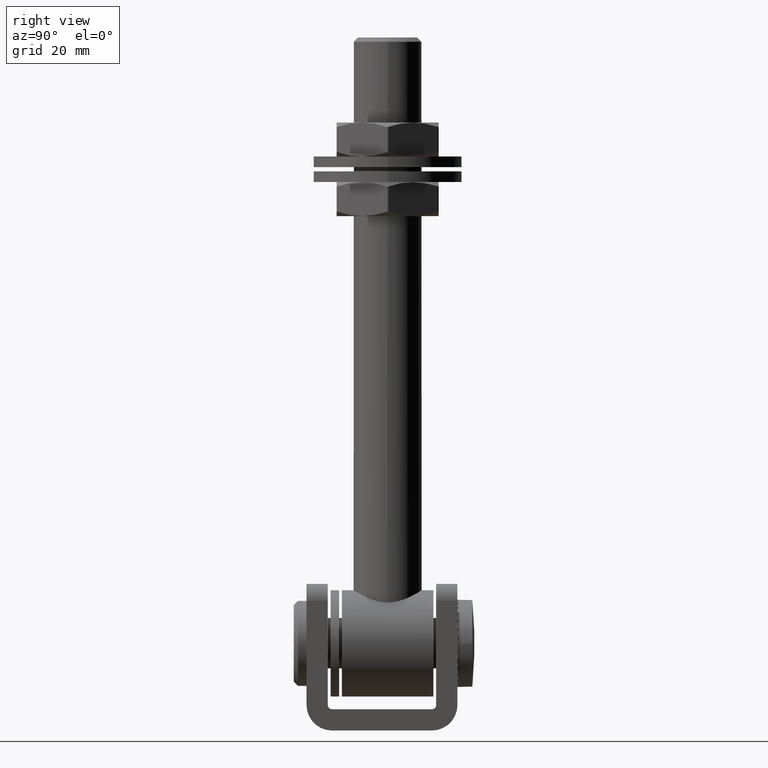
[diagram: clean part render]
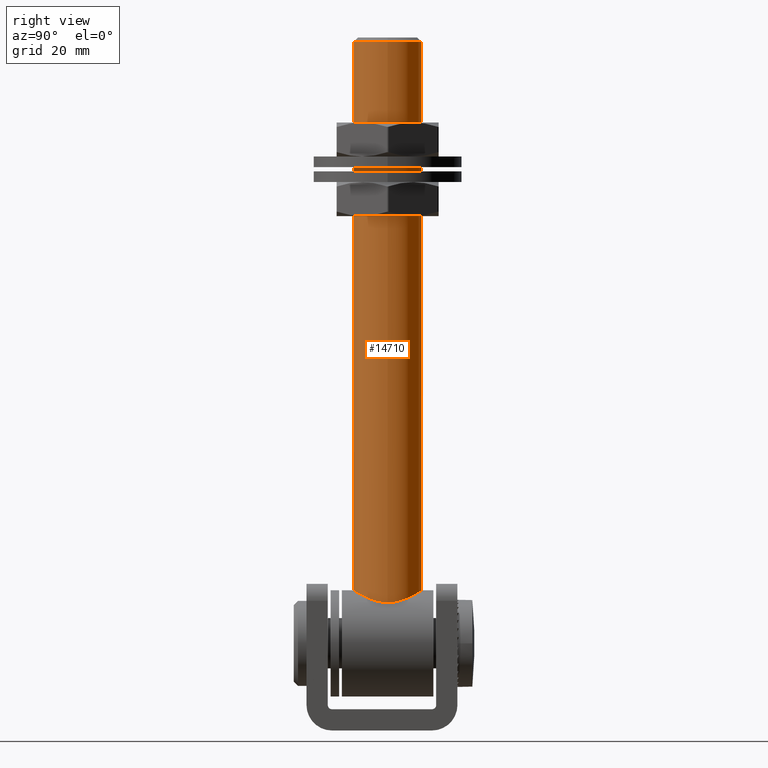
[diagram: same view with one face highlighted and labeled with its STEP entity id]
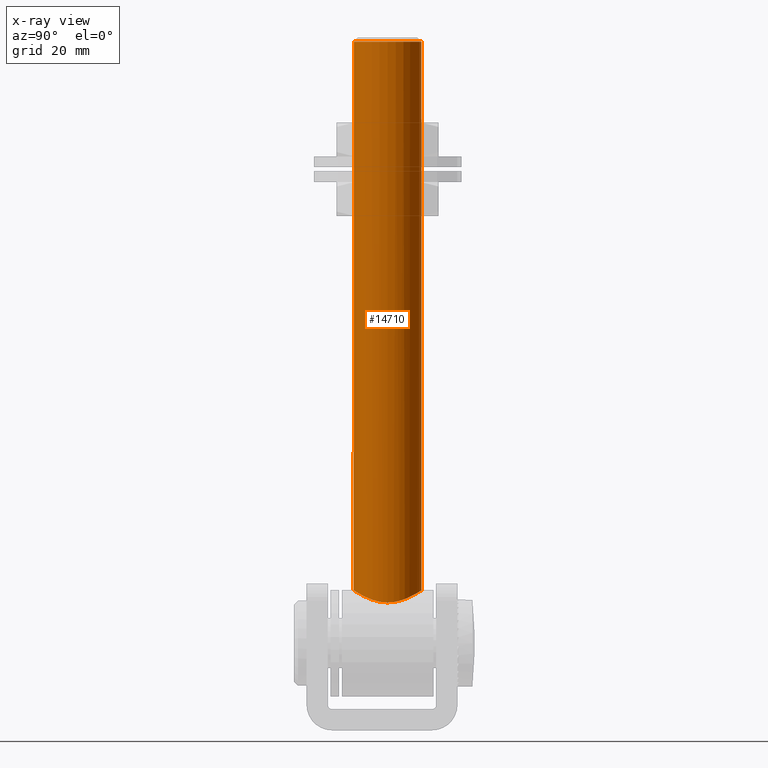
[diagram: x-ray of the same camera — body ghosted, the highlighted face saturated]
A machine part, right view. The second image highlights one B-rep face of the part: STEP entity #14710.
The next image is the same camera in x-ray: the body ghosted, the highlighted face saturated — about 0% of this face is hidden behind the body in this view.
In plain terms, the highlighted cylindrical surface (bore or boss wall) has radius 8 mm, axis along (0, 0, 1).
Its self-contained STEP definition (entity closure, byte-faithful):
#349 = CARTESIAN_POINT ( 'NONE',  ( 7.999999999999998224, -0.5454683496510984719, 22.10468635614929767 ) ) ;
#355 = AXIS2_PLACEMENT_3D ( 'NONE', #7534, #7317, #15854 ) ;
#435 = CARTESIAN_POINT ( 'NONE',  ( 7.726767025061614724, -2.141723424343242588, 22.32682643505994946 ) ) ;
#624 = CARTESIAN_POINT ( 'NONE',  ( -2.850959130328162949, 7.479375526213288161, 24.67310839935930034 ) ) ;
#696 = CARTESIAN_POINT ( 'NONE',  ( -5.997958754650827728, 5.299954014183470008, 23.46856614369925254 ) ) ;
#783 = CARTESIAN_POINT ( 'NONE',  ( 6.927106962908643695, 4.034537184033605506, 22.91051240348730289 ) ) ;
#1101 = CARTESIAN_POINT ( 'NONE',  ( 8.000000000000000000, 0.000000000000000000, 154.0000000000000284 ) ) ;
#1145 = CARTESIAN_POINT ( 'NONE',  ( -7.557621313358712456, 2.673864851608510396, 22.45970261290592518 ) ) ;
#1725 = CARTESIAN_POINT ( 'NONE',  ( 4.042478787381219796, -6.908446655177310269, 24.33074556269136224 ) ) ;
#2379 = VERTEX_POINT ( 'NONE', #1101 ) ;
#2443 = CARTESIAN_POINT ( 'NONE',  ( 7.999999999999998224, 0.5454683496511104623, 22.10468635614928345 ) ) ;
#2725 = CARTESIAN_POINT ( 'NONE',  ( -7.184069897211315947, -3.558054997097419569, 22.73233445889194471 ) ) ;
#2812 = CARTESIAN_POINT ( 'NONE',  ( -6.477316523627482781, 4.702033813157902919, 23.19218112865063475 ) ) ;
#2898 = CARTESIAN_POINT ( 'NONE',  ( -8.002535385573718685, -0.5042735986296233985, 22.10257460843511979 ) ) ;
#2961 = FACE_OUTER_BOUND ( 'NONE', #5622, .T. ) ;
#3037 = CARTESIAN_POINT ( 'NONE',  ( -2.162078596445624612, -7.720895130739021894, 24.82294607310170775 ) ) ;
#3796 = CARTESIAN_POINT ( 'NONE',  ( 6.022115724631410316, -5.291028751336778413, 23.46120233513477160 ) ) ;
#3995 = CARTESIAN_POINT ( 'NONE',  ( 5.322005861619240719, 5.994390575232530161, 23.81753430498451252 ) ) ;
#4077 = CARTESIAN_POINT ( 'NONE',  ( 7.944861982727176475, 1.077216154405964188, 22.15130229499927239 ) ) ;
#4143 = CARTESIAN_POINT ( 'NONE',  ( 2.667693104955243921, 7.560163069758923271, 24.72208889438390500 ) ) ;
#4365 = CARTESIAN_POINT ( 'NONE',  ( -7.573141455986650783, -2.591775148635318438, 22.44520317511529939 ) ) ;
#4523 = CARTESIAN_POINT ( 'NONE',  ( -6.937051407935236114, -4.017135753717870017, 22.90380517774536173 ) ) ;
#4600 = CARTESIAN_POINT ( 'NONE',  ( -7.925958969532766574, 1.118737722377457722, 22.16594805705182836 ) ) ;
#4675 = CARTESIAN_POINT ( 'NONE',  ( -7.950427690527955171, -1.037997620068277449, 22.14669702465948831 ) ) ;
#4881 = CARTESIAN_POINT ( 'NONE',  ( -0.2974571727273283561, -7.998995236841873968, 24.99935695390728085 ) ) ;
#5137 = EDGE_CURVE ( 'NONE', #20525, #20525, #18126, .T. ) ;
#5537 = CARTESIAN_POINT ( 'NONE',  ( 7.163689336258907581, -3.598812311873129666, 22.74668071112485279 ) ) ;
#5622 = EDGE_LOOP ( 'NONE', ( #19383 ) ) ;
#5808 = CARTESIAN_POINT ( 'NONE',  ( -0.5062884801357961928, 7.988503933067514495, 24.99262952341520716 ) ) ;
#5877 = CARTESIAN_POINT ( 'NONE',  ( -2.600330002857885070, 7.570318484142209314, 24.72930768733408158 ) ) ;
#5958 = CARTESIAN_POINT ( 'NONE',  ( 7.171814772937419313, 3.582397195696791492, 22.74095172744605620 ) ) ;
#6261 = CARTESIAN_POINT ( 'NONE',  ( -6.050648417971467907, -5.258483077015710272, 23.44545132170996737 ) ) ;
#6310 = CARTESIAN_POINT ( 'NONE',  ( 2.108765420479957076, -7.735946326957306773, 24.83239814943447854 ) ) ;
#6332 = CARTESIAN_POINT ( 'NONE',  ( -7.983217010569967798, 0.5836487302595602111, 22.11871215862535678 ) ) ;
#6423 = AXIS2_PLACEMENT_3D ( 'NONE', #11979, #8550, #22113 ) ;
#6490 = CARTESIAN_POINT ( 'NONE',  ( -4.938972675670426860, -6.314095043563813903, 23.99178990770705155 ) ) ;
#6604 = CARTESIAN_POINT ( 'NONE',  ( 0.5092763689232374658, -7.988315172126279506, 24.99250868938884551 ) ) ;
#6759 = CARTESIAN_POINT ( 'NONE',  ( 3.344213590382896673, -7.272255594718671112, 24.54695537697011076 ) ) ;
#6807 = CARTESIAN_POINT ( 'NONE',  ( -3.633323965834277303, -7.132052364044705328, 24.46269017795404466 ) ) ;
#6975 = CARTESIAN_POINT ( 'NONE',  ( 4.263610896848271992, -6.774051519877278160, 24.25260584393651087 ) ) ;
#7270 = CARTESIAN_POINT ( 'NONE',  ( 7.568968603837373799, -2.642084259943910940, 22.45106148992618600 ) ) ;
#7317 = DIRECTION ( 'NONE',  ( 0.000000000000000000, 0.000000000000000000, 1.000000000000000000 ) ) ;
#7534 = CARTESIAN_POINT ( 'NONE',  ( 0.000000000000000000, 0.000000000000000000, -0.002000000000002000178 ) ) ;
#7543 = CARTESIAN_POINT ( 'NONE',  ( -1.042361930456505714, 7.936372264434696788, 24.95935801076277372 ) ) ;
#7825 = CARTESIAN_POINT ( 'NONE',  ( -7.720288124928920581, 2.163341329871696139, 22.33192668377207113 ) ) ;
#7997 = CARTESIAN_POINT ( 'NONE',  ( 8.000000000000000000, 0.000000000000000000, 22.10468635614928345 ) ) ;
#8550 = DIRECTION ( 'NONE',  ( 0.000000000000000000, 0.000000000000000000, -1.000000000000000000 ) ) ;
#8551 = CARTESIAN_POINT ( 'NONE',  ( 2.615350972223482451, -7.578773197831190522, 24.73362304729601746 ) ) ;
#8985 = CARTESIAN_POINT ( 'NONE',  ( 5.480806777110236894, -5.833178621820512610, 23.73617887362677692 ) ) ;
#9151 = EDGE_LOOP ( 'NONE', ( #18430 ) ) ;
#9265 = CARTESIAN_POINT ( 'NONE',  ( -1.830630455624723929, 7.792305838248457128, 24.86803892192444110 ) ) ;
#9330 = CARTESIAN_POINT ( 'NONE',  ( 6.035418748259202104, 5.275432237524000811, 23.45372309622496587 ) ) ;
#9407 = CARTESIAN_POINT ( 'NONE',  ( 4.077969079923300377, 6.901622594810252309, 24.32480772774165345 ) ) ;
#9913 = CARTESIAN_POINT ( 'NONE',  ( -2.666894575873833606, -7.560957300139380166, 24.72254483589563634 ) ) ;
#10510 = CARTESIAN_POINT ( 'NONE',  ( 4.895109574852599899, -6.332732507795659771, 24.00368128309878557 ) ) ;
#10582 = CARTESIAN_POINT ( 'NONE',  ( 5.290158784770024880, -6.006647883555853440, 23.82744458582125802 ) ) ;
#10730 = CARTESIAN_POINT ( 'NONE',  ( 7.944073626643603170, -1.087015225480107095, 22.15200189902789063 ) ) ;
#11006 = CARTESIAN_POINT ( 'NONE',  ( -3.577842290917761847, 7.174618417797546499, 24.48745964759564941 ) ) ;
#11086 = CARTESIAN_POINT ( 'NONE',  ( -4.894839954791928349, 6.348977109928490847, 24.01098710860500773 ) ) ;
#11157 = CARTESIAN_POINT ( 'NONE',  ( 6.356090822267284501, 4.884916644531084984, 23.26864377894588998 ) ) ;
#11728 = CARTESIAN_POINT ( 'NONE',  ( -4.306198869315803535, -6.746996600373187825, 24.23702785595133236 ) ) ;
#11979 = CARTESIAN_POINT ( 'NONE',  ( 0.000000000000000000, 0.000000000000000000, 154.0000000000000284 ) ) ;
#12120 = CARTESIAN_POINT ( 'NONE',  ( 3.583075828995053058, -7.157502185646134940, 24.47788557798245535 ) ) ;
#12461 = CIRCLE ( 'NONE', #6423, 8.000000000000000000 ) ;
#12784 = CARTESIAN_POINT ( 'NONE',  ( -4.034135332901208848, 6.927822214899964415, 24.34010280839386198 ) ) ;
#13007 = CARTESIAN_POINT ( 'NONE',  ( -7.998591649157646977, 0.3102382067607599159, 22.10585938669759543 ) ) ;
#13082 = CARTESIAN_POINT ( 'NONE',  ( -6.905907626272866473, 4.070312662036863927, 22.92458183323950038 ) ) ;
#13514 = CARTESIAN_POINT ( 'NONE',  ( -1.107275630834636093, -7.927654756466886887, 24.95380387079437412 ) ) ;
#13638 = CARTESIAN_POINT ( 'NONE',  ( -4.087473285484913177, -6.881843946547220092, 24.31522583258022507 ) ) ;
#14572 = CARTESIAN_POINT ( 'NONE',  ( -6.323304469152955853, 4.907223488424209634, 23.28428361374034594 ) ) ;
#14644 = CARTESIAN_POINT ( 'NONE',  ( -0.2329977738218916572, 8.001195292176250362, 25.00076498171978656 ) ) ;
#14709 = CARTESIAN_POINT ( 'NONE',  ( -7.727609127432875091, -2.086582638450574567, 22.32566002263071070 ) ) ;
#14710 = ADVANCED_FACE ( 'NONE', ( #2961, #21363 ), #22226, .T. ) ;
#15228 = CARTESIAN_POINT ( 'NONE',  ( -0.5670481200250230280, -7.984499088230166741, 24.99006591673674649 ) ) ;
#15675 = CARTESIAN_POINT ( 'NONE',  ( 4.689927936537591435, -6.486195173116453994, 24.08907666523688107 ) ) ;
#15750 = CARTESIAN_POINT ( 'NONE',  ( 6.343829228681417298, -4.900507443424293896, 23.27584466338676350 ) ) ;
#15854 = DIRECTION ( 'NONE',  ( 1.000000000000000000, 0.000000000000000000, 0.000000000000000000 ) ) ;
#16091 = CARTESIAN_POINT ( 'NONE',  ( 7.574021915069559796, 2.627296868476371561, 22.44717102754598770 ) ) ;
#16171 = CARTESIAN_POINT ( 'NONE',  ( 3.627778838024813712, 7.149256803749033828, 24.47227063454662499 ) ) ;
#16245 = CARTESIAN_POINT ( 'NONE',  ( -5.288232630848653137, 6.024255444852267161, 23.83342973297281731 ) ) ;
#16385 = CARTESIAN_POINT ( 'NONE',  ( 7.999999999999998224, 1.626303258728256651E-16, 22.10468635614929056 ) ) ;
#16470 = CARTESIAN_POINT ( 'NONE',  ( -7.484283797690181039, -2.837807242965803667, 22.51253605373252498 ) ) ;
#16621 = CARTESIAN_POINT ( 'NONE',  ( -7.150680656555896242, 3.624218441093000731, 22.75578286634502945 ) ) ;
#16622 = CARTESIAN_POINT ( 'NONE',  ( -6.370827982271031864, -4.865450926733006831, 23.25985107857585277 ) ) ;
#16667 = CARTESIAN_POINT ( 'NONE',  ( 1.314490796382517868, -7.895888375557873040, 24.93355732986029594 ) ) ;
#16978 = CARTESIAN_POINT ( 'NONE',  ( 0.2407050989864949198, -8.000904112907983645, 25.00057863005226011 ) ) ;
#17960 = CARTESIAN_POINT ( 'NONE',  ( -5.826899362754029532, 5.487395404200228199, 23.56063977733150239 ) ) ;
#18124 = CARTESIAN_POINT ( 'NONE',  ( 7.733156098138794121, 2.116488443085737359, 22.32174957305776530 ) ) ;
#18126 = B_SPLINE_CURVE_WITH_KNOTS ( 'NONE', 3,
 ( #16385, #2443, #4077, #18124, #16091, #5958, #783, #11157, #9330, #3995, #21436, #9407, #16171, #4143, #19776, #21205, #21508, #14644, #5808, #7543, #19622, #9265, #21370, #5877, #624, #11006, #12784, #11086, #16245, #17960, #696, #14572, #2812, #13082, #16621, #1145, #7825, #20127, #4600, #6332, #13007, #2898, #4675, #19842, #14709, #4365, #16470, #2725, #4523, #16622, #6261, #18352, #6490, #11728, #13638, #6807, #20273, #9913, #3037, #20345, #13514, #15228, #4881, #16978, #6604, #22201, #16667, #6310, #8551, #6759, #12120, #1725, #6975, #15675, #10510, #10582, #8985, #3796, #15750, #19283, #5537, #7270, #435, #10730, #349, #19432 ),
 .UNSPECIFIED., .T., .F.,
 ( 4, 2, 2, 2, 2, 2, 2, 2, 2, 2, 2, 2, 2, 2, 2, 2, 2, 2, 2, 2, 2, 2, 2, 2, 2, 2, 2, 2, 2, 2, 2, 2, 2, 2, 2, 2, 2, 2, 2, 2, 2, 2, 4 ),
 ( 0.000000000000000000, 0.001607618632887173552, 0.003215237265774347104, 0.004822855898661521090, 0.006430474531548694209, 0.008038093164435867327, 0.009645711797323042180, 0.01125333043021021530, 0.01286094906309738842, 0.01366475837954097411, 0.01446856769598456154, 0.01527237701242815070, 0.01607618632887173465, 0.01768380496175890257, 0.01929142359464607048, 0.02009523291108965617, 0.02089904222753323840, 0.02250666086042040284, 0.02411427949330756382, 0.02491808880975114604, 0.02572189812619472479, 0.02732951675908188577, 0.02813332607552546799, 0.02893713539196904674, 0.03054475402485620772, 0.03215237265774336523, 0.03375999129063051579, 0.03456380060707409108, 0.03536760992351766636, 0.03697522855640482387, 0.03777903787284839915, 0.03858284718929197443, 0.03938665650573554972, 0.04019046582217912500, 0.04179808445506626863, 0.04260189377150984391, 0.04340570308795341919, 0.04420951240439699448, 0.04501332172084056976, 0.04662094035372771339, 0.04822855898661485702, 0.04983617761950200759, 0.05144379625238914427 ),
 .UNSPECIFIED. ) ;
#18352 = CARTESIAN_POINT ( 'NONE',  ( -5.331166988497527015, -5.986706030023140279, 23.81335093836381134 ) ) ;
#18430 = ORIENTED_EDGE ( 'NONE', *, *, #5137, .T. ) ;
#19283 = CARTESIAN_POINT ( 'NONE',  ( 6.913811262488466447, -4.056889980319550837, 22.91931913892656070 ) ) ;
#19383 = ORIENTED_EDGE ( 'NONE', *, *, #22304, .T. ) ;
#19432 = CARTESIAN_POINT ( 'NONE',  ( 7.999999999999998224, 1.626303258728256651E-16, 22.10468635614929056 ) ) ;
#19622 = CARTESIAN_POINT ( 'NONE',  ( -1.307186916885227479, 7.896993130691318363, 24.93426141769679916 ) ) ;
#19776 = CARTESIAN_POINT ( 'NONE',  ( 2.151912218369013807, 7.723473831622881924, 24.82456837966968877 ) ) ;
#19842 = CARTESIAN_POINT ( 'NONE',  ( -7.793482658790092721, -1.825736269983524451, 22.27323610858297442 ) ) ;
#20127 = CARTESIAN_POINT ( 'NONE',  ( -7.884119729567823143, 1.382526564013053072, 22.20028679223383961 ) ) ;
#20273 = CARTESIAN_POINT ( 'NONE',  ( -3.396873470892242786, -7.247851482755947927, 24.53222684538588538 ) ) ;
#20345 = CARTESIAN_POINT ( 'NONE',  ( -1.375781500358165266, -7.885361541016473019, 24.92687093389632835 ) ) ;
#20525 = VERTEX_POINT ( 'NONE', #7997 ) ;
#21205 = CARTESIAN_POINT ( 'NONE',  ( 1.110728097199914499, 7.940343652350310144, 24.96162088312794225 ) ) ;
#21363 = FACE_OUTER_BOUND ( 'NONE', #9151, .T. ) ;
#21370 = CARTESIAN_POINT ( 'NONE',  ( -2.089248573396643938, 7.726996730533033819, 24.82691052266591569 ) ) ;
#21436 = CARTESIAN_POINT ( 'NONE',  ( 4.924629149947183926, 6.325365917754988132, 23.99799710168513656 ) ) ;
#21508 = CARTESIAN_POINT ( 'NONE',  ( 0.5798439864911822950, 7.997339383565390314, 24.99829721660191595 ) ) ;
#22113 = DIRECTION ( 'NONE',  ( 1.000000000000000000, 0.000000000000000000, 0.000000000000000000 ) ) ;
#22201 = CARTESIAN_POINT ( 'NONE',  ( 1.045398777421124414, -7.935973985928441721, 24.95910418812549381 ) ) ;
#22226 = CYLINDRICAL_SURFACE ( 'NONE', #355, 8.000000000000000000 ) ;
#22304 = EDGE_CURVE ( 'NONE', #2379, #2379, #12461, .T. ) ;